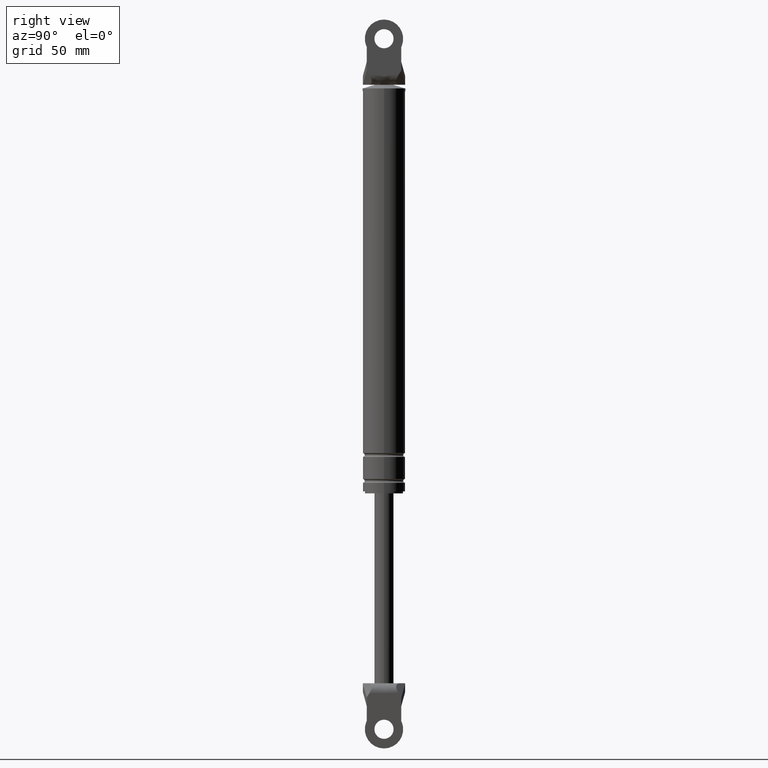
[diagram: clean part render]
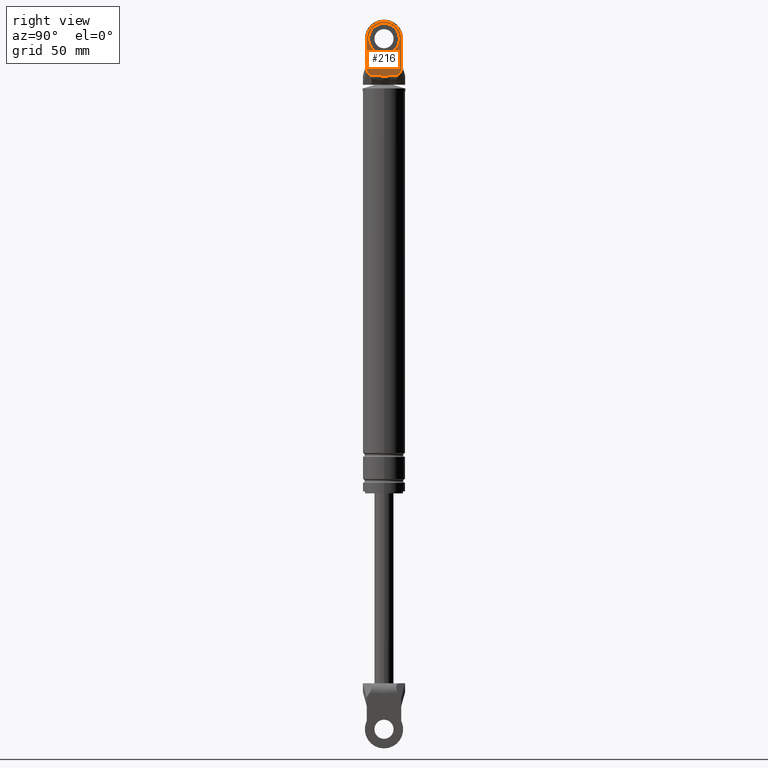
[diagram: same view with one face highlighted and labeled with its STEP entity id]
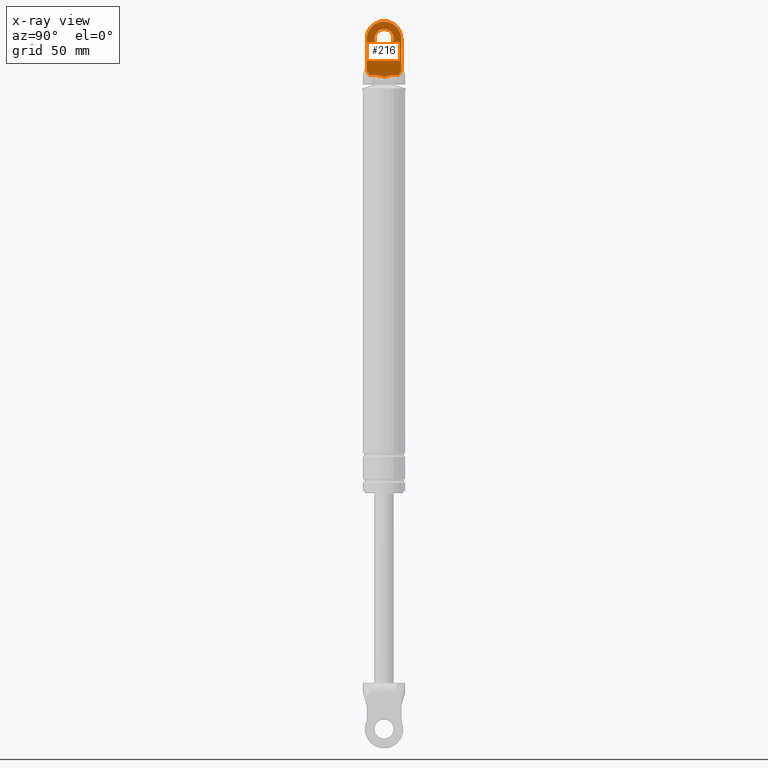
[diagram: x-ray of the same camera — body ghosted, the highlighted face saturated]
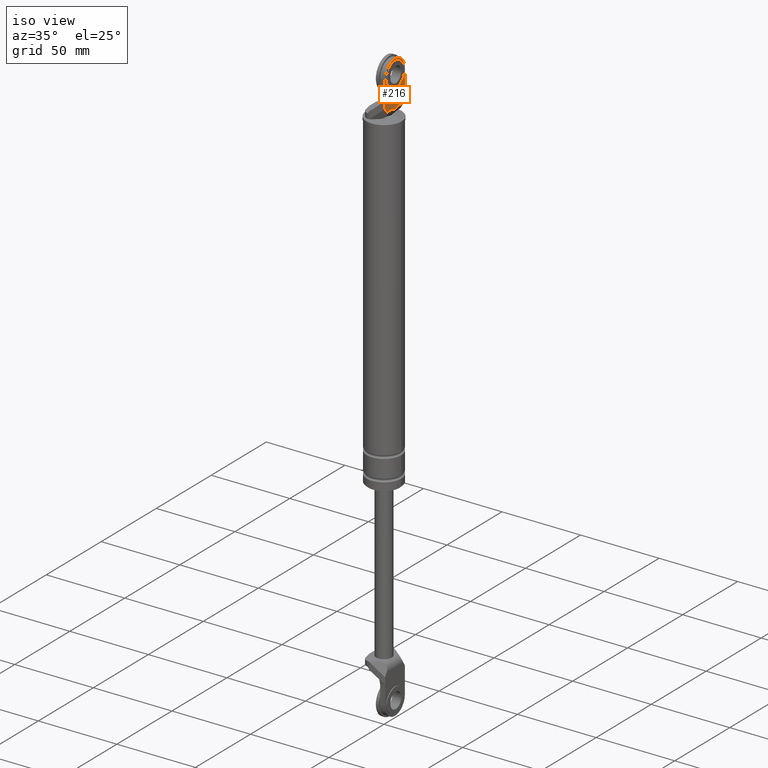
[diagram: same view with one face highlighted and labeled with its STEP entity id]
A machine part, right view. The second image highlights one B-rep face of the part: STEP entity #216.
The next image is the same camera in x-ray: the body ghosted, the highlighted face saturated — about 0% of this face is hidden behind the body in this view.
A second angle (iso view) of the same face is appended — the face is thin or edge-on in the first view.
In plain terms, the highlighted planar face has unit normal (1, 0, 0).
Its self-contained STEP definition (entity closure, byte-faithful):
#216=ADVANCED_FACE('',(#411,#412),#410,.T.);
#410=PLANE('',#1184);
#411=FACE_OUTER_BOUND('',#1185,.T.);
#412=FACE_BOUND('',#1186,.T.);
#1181=CARTESIAN_POINT('',(7.00000000000E+000,1.08000000785E+001,9.03623767282E+001));
#1182=DIRECTION('',(1.00000000000E+000,0.00000000000E+000,-0.00000000000E+000));
#1183=DIRECTION('',(0.00000000000E+000,1.22460635382E-016,1.00000000000E+000));
#1184=AXIS2_PLACEMENT_3D('',#1181,#1182,#1183);
#1185=EDGE_LOOP('',(#1812,#1813,#1814,#1815,#1816,#1817,#1818,#1819,#1820,#1821));
#1186=EDGE_LOOP('',(#1822,#1823));
#1812=ORIENTED_EDGE('',*,*,#2182,.T.);
#1813=ORIENTED_EDGE('',*,*,#2183,.T.);
#1814=ORIENTED_EDGE('',*,*,#2184,.T.);
#1815=ORIENTED_EDGE('',*,*,#2185,.T.);
#1816=ORIENTED_EDGE('',*,*,#2186,.T.);
#1817=ORIENTED_EDGE('',*,*,#2187,.F.);
#1818=ORIENTED_EDGE('',*,*,#2188,.T.);
#1819=ORIENTED_EDGE('',*,*,#2189,.F.);
#1820=ORIENTED_EDGE('',*,*,#2190,.T.);
#1821=ORIENTED_EDGE('',*,*,#2191,.T.);
#1822=ORIENTED_EDGE('',*,*,#2192,.T.);
#1823=ORIENTED_EDGE('',*,*,#2193,.T.);
#2182=EDGE_CURVE('',#2515,#2516,#2517,.T.);
#2183=EDGE_CURVE('',#2516,#2523,#2524,.T.);
#2184=EDGE_CURVE('',#2523,#2530,#2531,.T.);
#2185=EDGE_CURVE('',#2530,#2537,#2538,.T.);
#2186=EDGE_CURVE('',#2537,#2544,#2545,.T.);
#2187=EDGE_CURVE('',#2551,#2544,#2552,.T.);
#2188=EDGE_CURVE('',#2551,#2558,#2559,.T.);
#2189=EDGE_CURVE('',#2565,#2558,#2566,.T.);
#2190=EDGE_CURVE('',#2565,#2572,#2573,.T.);
#2191=EDGE_CURVE('',#2572,#2515,#2579,.T.);
#2192=EDGE_CURVE('',#2585,#2586,#2587,.T.);
#2193=EDGE_CURVE('',#2586,#2585,#2593,.T.);
#2515=VERTEX_POINT('',#3759);
#2516=VERTEX_POINT('',#3760);
#2517=LINE('',#3761,#3762);
#2523=VERTEX_POINT('',#3764);
#2524=LINE('',#3765,#3766);
#2530=VERTEX_POINT('',#3768);
#2531=(BOUNDED_CURVE() B_SPLINE_CURVE(3,(#3769,#3770,#3771,#3772,#3773,#3774,#3775,#3776,#3777,#3778,#3779,#3780,#3781,#3782,#3783,#3784,#3785,#3786),.UNSPECIFIED.,.F.,.F.) B_SPLINE_CURVE_WITH_KNOTS((4,2,2,2,2,2,2,2,4),(0.00000000000E+000,1.06854947845E-003,2.13709895690E-003,3.20564843535E-003,4.27419791380E-003,5.34274739225E-003,6.41129687069E-003,7.47984634914E-003,8.54839582759E-003),.UNSPECIFIED.) CURVE() GEOMETRIC_REPRESENTATION_ITEM() RATIONAL_B_SPLINE_CURVE((1.00000000000E+000,1.00000000000E+000,1.00000000000E+000,1.00000000000E+000,1.00000000000E+000,1.00000000000E+000,1.00000000000E+000,1.00000000000E+000,1.00000000000E+000,1.00000000000E+000,1.00000000000E+000,1.00000000000E+000,1.00000000000E+000,1.00000000000E+000,1.00000000000E+000,1.00000000000E+000,1.00000000000E+000,1.00000000000E+000)) REPRESENTATION_ITEM('') );
#2537=VERTEX_POINT('',#3787);
#2538=LINE('',#3788,#3789);
#2544=VERTEX_POINT('',#3791);
#2545=LINE('',#3792,#3793);
#2551=VERTEX_POINT('',#3795);
#2552=LINE('',#3796,#3797);
#2558=VERTEX_POINT('',#3799);
#2559=LINE('',#3800,#3801);
#2565=VERTEX_POINT('',#3803);
#2566=CIRCLE('',#3807,9.00000000000E+000);
#2572=VERTEX_POINT('',#3808);
#2573=LINE('',#3809,#3810);
#2579=LINE('',#3812,#3813);
#2585=VERTEX_POINT('',#3815);
#2586=VERTEX_POINT('',#3816);
#2587=CIRCLE('',#3820,5.00000000000E+000);
#2593=CIRCLE('',#3824,5.00000000000E+000);
#3759=CARTESIAN_POINT('',(7.00000000000E+000,-9.00000000000E+000,9.63794956183E+001));
#3760=CARTESIAN_POINT('',(7.00000000000E+000,-7.51280740496E+000,9.39999850000E+001));
#3761=CARTESIAN_POINT('',(7.00000000000E+000,-9.00000000000E+000,9.63794956183E+001));
#3762=VECTOR('',#3763,2.80603146760E+000);
#3763=DIRECTION('',(0.00000000000E+000,5.29998544994E-001,-8.47998550886E-001));
#3764=CARTESIAN_POINT('',(7.00000000000E+000,-4.19794107278E+000,9.39999850000E+001));
#3765=CARTESIAN_POINT('',(7.00000000000E+000,-7.51280740496E+000,9.39999850000E+001));
#3766=VECTOR('',#3767,3.31486633219E+000);
#3767=DIRECTION('',(0.00000000000E+000,1.00000000000E+000,0.00000000000E+000));
#3768=CARTESIAN_POINT('',(7.00000000000E+000,4.19794107278E+000,9.39999850000E+001));
#3769=CARTESIAN_POINT('',(7.00000000000E+000,-4.19794107278E+000,9.39999850000E+001));
#3770=CARTESIAN_POINT('',(7.00000000000E+000,-3.83668867664E+000,9.39999850000E+001));
#3771=CARTESIAN_POINT('',(7.00000000000E+000,-3.48084742448E+000,9.39680255174E+001));
#3772=CARTESIAN_POINT('',(7.00000000000E+000,-2.77747191810E+000,9.38550434783E+001));
#3773=CARTESIAN_POINT('',(7.00000000000E+000,-2.43004895945E+000,9.37733635842E+001));
#3774=CARTESIAN_POINT('',(7.00000000000E+000,-1.73930455721E+000,9.35857792882E+001));
#3775=CARTESIAN_POINT('',(7.00000000000E+000,-1.39633116709E+000,9.34788034011E+001));
#3776=CARTESIAN_POINT('',(7.00000000000E+000,-7.02882341013E-001,9.33033126541E+001));
#3777=CARTESIAN_POINT('',(7.00000000000E+000,-3.50170672612E-001,9.32385229705E+001));
#3778=CARTESIAN_POINT('',(7.00000000000E+000,3.75945783394E-001,9.32414472218E+001));
#3779=CARTESIAN_POINT('',(7.00000000000E+000,7.25000323177E-001,9.33080943097E+001));
#3780=CARTESIAN_POINT('',(7.00000000000E+000,1.41392909206E+000,9.34841213850E+001));
#3781=CARTESIAN_POINT('',(7.00000000000E+000,1.75451243077E+000,9.35902005791E+001));
#3782=CARTESIAN_POINT('',(7.00000000000E+000,2.44131589628E+000,9.37761206067E+001));
#3783=CARTESIAN_POINT('',(7.00000000000E+000,2.78721992144E+000,9.38569752041E+001));
#3784=CARTESIAN_POINT('',(7.00000000000E+000,3.48676651954E+000,9.39686020866E+001));
#3785=CARTESIAN_POINT('',(7.00000000000E+000,3.84186402612E+000,9.39999850000E+001));
#3786=CARTESIAN_POINT('',(7.00000000000E+000,4.19794107278E+000,9.39999850000E+001));
#3787=CARTESIAN_POINT('',(7.00000000000E+000,7.51280740496E+000,9.39999850000E+001));
#3788=CARTESIAN_POINT('',(7.00000000000E+000,4.19794107278E+000,9.39999850000E+001));
#3789=VECTOR('',#3790,3.31486633219E+000);
#3790=DIRECTION('',(0.00000000000E+000,1.00000000000E+000,0.00000000000E+000));
#3791=CARTESIAN_POINT('',(7.00000000000E+000,9.00000000000E+000,9.63794956183E+001));
#3792=CARTESIAN_POINT('',(7.00000000000E+000,7.51280740496E+000,9.39999850000E+001));
#3793=VECTOR('',#3794,2.80603146760E+000);
#3794=DIRECTION('',(0.00000000000E+000,5.29998544994E-001,8.47998550886E-001));
#3795=CARTESIAN_POINT('',(7.00000000000E+000,9.00000000000E+000,1.00999985000E+002));
#3796=CARTESIAN_POINT('',(7.00000000000E+000,9.00000000000E+000,1.00999985000E+002));
#3797=VECTOR('',#3798,4.62048938173E+000);
#3798=DIRECTION('',(0.00000000000E+000,0.00000000000E+000,-1.00000000000E+000));
#3799=CARTESIAN_POINT('',(7.00000000000E+000,9.00000000000E+000,1.12999985000E+002));
#3800=CARTESIAN_POINT('',(7.00000000000E+000,9.00000000000E+000,1.00999985000E+002));
#3801=VECTOR('',#3802,1.20000000000E+001);
#3802=DIRECTION('',(0.00000000000E+000,1.48029736617E-016,1.00000000000E+000));
#3803=CARTESIAN_POINT('',(7.00000000000E+000,-9.00000000000E+000,1.12999984215E+002));
#3804=CARTESIAN_POINT('',(7.00000000000E+000,1.50626581520E-014,1.12999985000E+002));
#3805=DIRECTION('',(-1.00000000000E+000,0.00000000000E+000,0.00000000000E+000));
#3806=DIRECTION('',(-0.00000000000E+000,-1.22460635382E-016,-1.00000000000E+000));
#3807=AXIS2_PLACEMENT_3D('',#3804,#3805,#3806);
#3808=CARTESIAN_POINT('',(7.00000000000E+000,-9.00000000000E+000,1.00999985000E+002));
#3809=CARTESIAN_POINT('',(7.00000000000E+000,-9.00000000000E+000,1.12999984215E+002));
#3810=VECTOR('',#3811,1.19999992146E+001);
#3811=DIRECTION('',(0.00000000000E+000,-1.48029746305E-016,-1.00000000000E+000));
#3812=CARTESIAN_POINT('',(7.00000000000E+000,-9.00000000000E+000,1.00999985000E+002));
#3813=VECTOR('',#3814,4.62048938173E+000);
#3814=DIRECTION('',(0.00000000000E+000,0.00000000000E+000,-1.00000000000E+000));
#3815=CARTESIAN_POINT('',(7.00000000000E+000,1.56749613289E-014,1.17999985000E+002));
#3816=CARTESIAN_POINT('',(7.00000000000E+000,1.48029736617E-014,1.07999985000E+002));
#3817=CARTESIAN_POINT('',(7.00000000000E+000,1.50626581520E-014,1.12999985000E+002));
#3818=DIRECTION('',(-1.00000000000E+000,0.00000000000E+000,0.00000000000E+000));
#3819=DIRECTION('',(0.00000000000E+000,-1.47911419729E-031,1.00000000000E+000));
#3820=AXIS2_PLACEMENT_3D('',#3817,#3818,#3819);
#3821=CARTESIAN_POINT('',(7.00000000000E+000,1.50626581520E-014,1.12999985000E+002));
#3822=DIRECTION('',(-1.00000000000E+000,0.00000000000E+000,0.00000000000E+000));
#3823=DIRECTION('',(0.00000000000E+000,-1.47911419729E-031,1.00000000000E+000));
#3824=AXIS2_PLACEMENT_3D('',#3821,#3822,#3823);